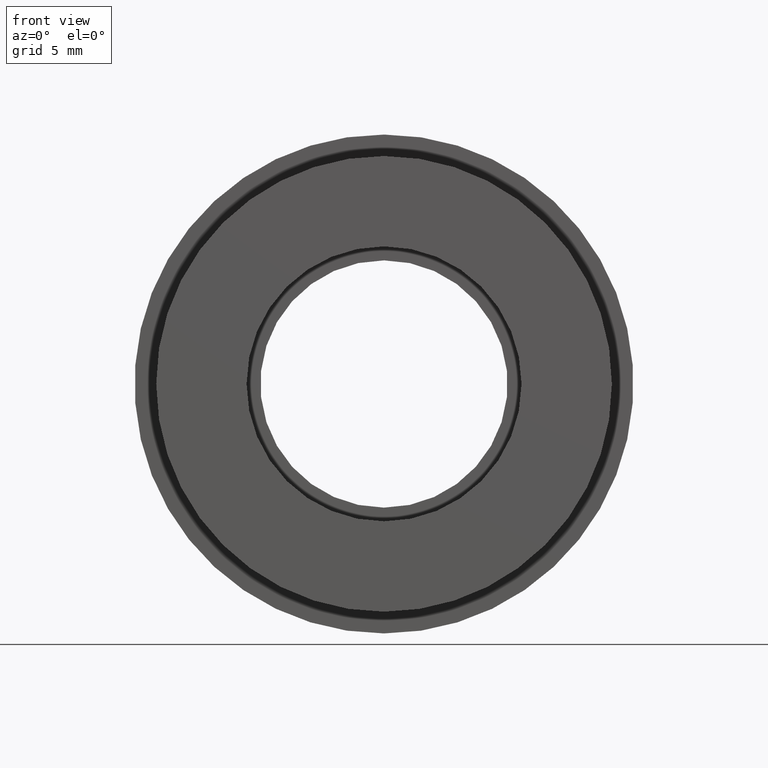
[diagram: clean part render]
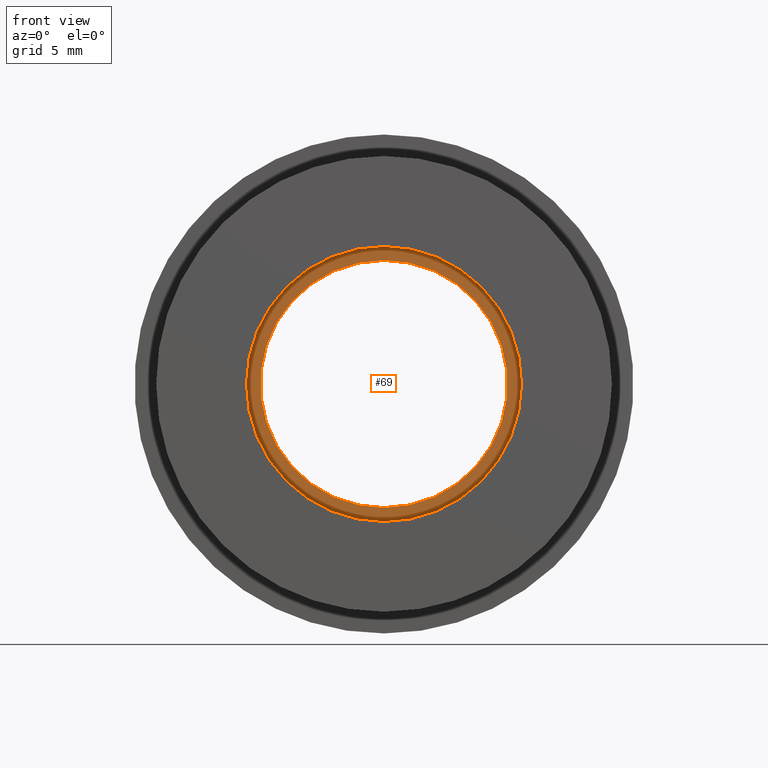
[diagram: same view with one face highlighted and labeled with its STEP entity id]
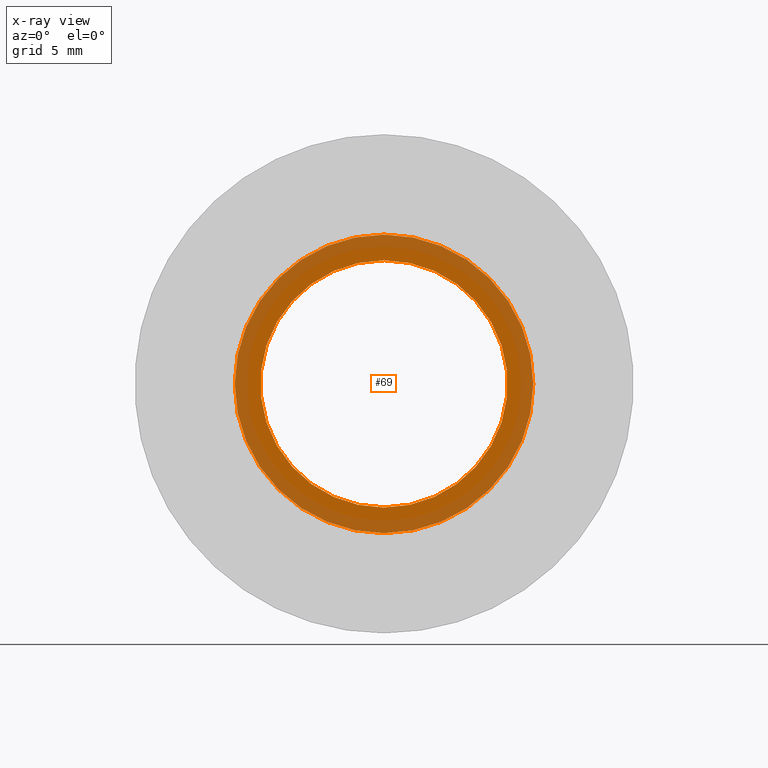
[diagram: x-ray of the same camera — body ghosted, the highlighted face saturated]
A machine part, front view. The second image highlights one B-rep face of the part: STEP entity #69.
The next image is the same camera in x-ray: the body ghosted, the highlighted face saturated — about 48% of this face is hidden behind the body in this view.
In plain terms, the highlighted planar face has unit normal (-0, 1, 0).
Its self-contained STEP definition (entity closure, byte-faithful):
#13 = AXIS2_PLACEMENT_3D ( 'NONE', #235, #245, #289 ) ;
#26 = CARTESIAN_POINT ( 'NONE',  ( 0.0000000000000000000, 4.999999999999999100, 0.0000000000000000000 ) ) ;
#31 = DIRECTION ( 'NONE',  ( -0.0000000000000000000, 1.000000000000000000, -0.0000000000000000000 ) ) ;
#36 = DIRECTION ( 'NONE',  ( 0.0000000000000000000, 0.0000000000000000000, 1.000000000000000000 ) ) ;
#46 = DIRECTION ( 'NONE',  ( 0.0000000000000000000, 0.0000000000000000000, 1.000000000000000000 ) ) ;
#47 = DIRECTION ( 'NONE',  ( 0.0000000000000000000, 0.0000000000000000000, 1.000000000000000000 ) ) ;
#51 = EDGE_LOOP ( 'NONE', ( #368, #535 ) ) ;
#66 = EDGE_LOOP ( 'NONE', ( #217, #584 ) ) ;
#69 = ADVANCED_FACE ( 'NONE', ( #186, #170 ), #206, .F. ) ;
#71 = AXIS2_PLACEMENT_3D ( 'NONE', #545, #547, #47 ) ;
#96 = VERTEX_POINT ( 'NONE', #118 ) ;
#116 = AXIS2_PLACEMENT_3D ( 'NONE', #191, #226, #203 ) ;
#118 = CARTESIAN_POINT ( 'NONE',  ( 0.0000000000000000000, 4.999999999999999100, 7.600000000000001400 ) ) ;
#127 = VERTEX_POINT ( 'NONE', #440 ) ;
#142 = AXIS2_PLACEMENT_3D ( 'NONE', #26, #31, #36 ) ;
#144 = VERTEX_POINT ( 'NONE', #578 ) ;
#170 = FACE_BOUND ( 'NONE', #51, .T. ) ;
#186 = FACE_OUTER_BOUND ( 'NONE', #66, .T. ) ;
#191 = CARTESIAN_POINT ( 'NONE',  ( 0.0000000000000000000, 4.999999999999999100, 0.0000000000000000000 ) ) ;
#195 = CIRCLE ( 'NONE', #142, 6.295000000000001700 ) ;
#203 = DIRECTION ( 'NONE',  ( 0.0000000000000000000, 0.0000000000000000000, 1.000000000000000000 ) ) ;
#206 = PLANE ( 'NONE',  #357 ) ;
#217 = ORIENTED_EDGE ( 'NONE', *, *, #532, .F. ) ;
#226 = DIRECTION ( 'NONE',  ( -0.0000000000000000000, 1.000000000000000000, -0.0000000000000000000 ) ) ;
#235 = CARTESIAN_POINT ( 'NONE',  ( 0.0000000000000000000, 4.999999999999999100, 0.0000000000000000000 ) ) ;
#245 = DIRECTION ( 'NONE',  ( -0.0000000000000000000, 1.000000000000000000, -0.0000000000000000000 ) ) ;
#284 = CIRCLE ( 'NONE', #71, 7.600000000000001400 ) ;
#289 = DIRECTION ( 'NONE',  ( 0.0000000000000000000, 0.0000000000000000000, 1.000000000000000000 ) ) ;
#322 = CIRCLE ( 'NONE', #116, 6.295000000000001700 ) ;
#357 = AXIS2_PLACEMENT_3D ( 'NONE', #605, #521, #46 ) ;
#368 = ORIENTED_EDGE ( 'NONE', *, *, #432, .T. ) ;
#432 = EDGE_CURVE ( 'NONE', #533, #127, #195, .T. ) ;
#440 = CARTESIAN_POINT ( 'NONE',  ( 7.709151600632590500E-016, 4.999999999999999100, -6.295000000000001700 ) ) ;
#442 = EDGE_CURVE ( 'NONE', #127, #533, #322, .T. ) ;
#491 = EDGE_CURVE ( 'NONE', #144, #96, #284, .T. ) ;
#521 = DIRECTION ( 'NONE',  ( -0.0000000000000000000, 1.000000000000000000, 0.0000000000000000000 ) ) ;
#532 = EDGE_CURVE ( 'NONE', #96, #144, #580, .T. ) ;
#533 = VERTEX_POINT ( 'NONE', #562 ) ;
#535 = ORIENTED_EDGE ( 'NONE', *, *, #442, .T. ) ;
#545 = CARTESIAN_POINT ( 'NONE',  ( 0.0000000000000000000, 4.999999999999999100, 0.0000000000000000000 ) ) ;
#547 = DIRECTION ( 'NONE',  ( -0.0000000000000000000, 1.000000000000000000, -0.0000000000000000000 ) ) ;
#562 = CARTESIAN_POINT ( 'NONE',  ( 0.0000000000000000000, 4.999999999999999100, 6.295000000000001700 ) ) ;
#578 = CARTESIAN_POINT ( 'NONE',  ( 9.307315673519887400E-016, 4.999999999999999100, -7.600000000000002300 ) ) ;
#580 = CIRCLE ( 'NONE', #13, 7.600000000000001400 ) ;
#584 = ORIENTED_EDGE ( 'NONE', *, *, #491, .F. ) ;
#605 = CARTESIAN_POINT ( 'NONE',  ( 7.600000000000001400, 4.999999999999999100, 0.0000000000000000000 ) ) ;